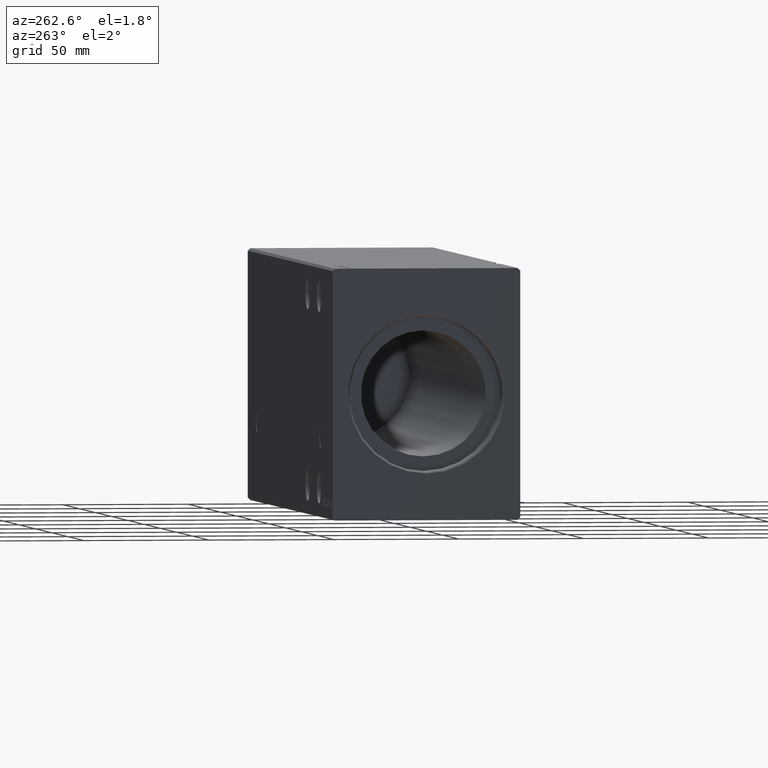
[diagram: clean part render]
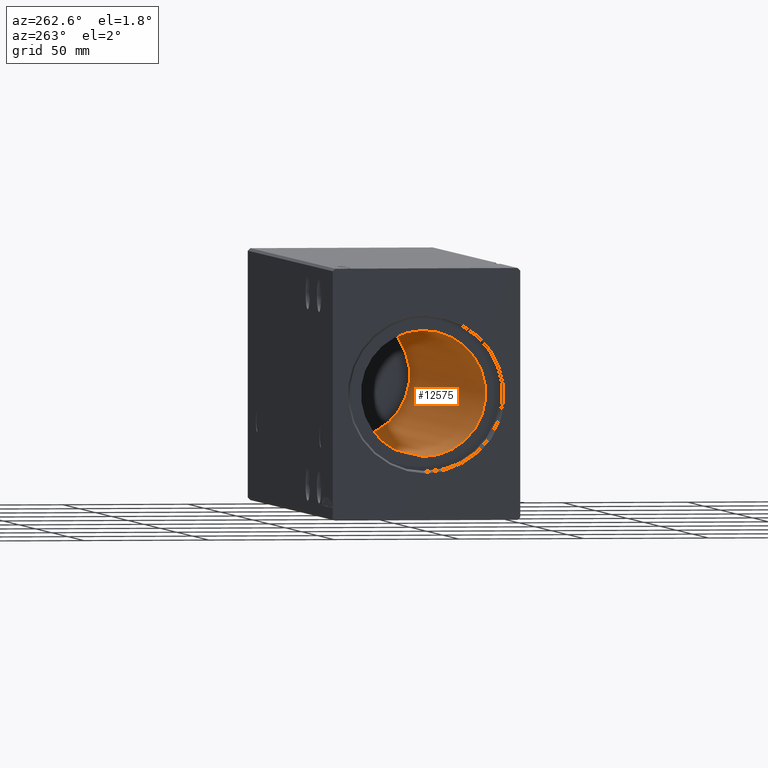
[diagram: same view with one face highlighted and labeled with its STEP entity id]
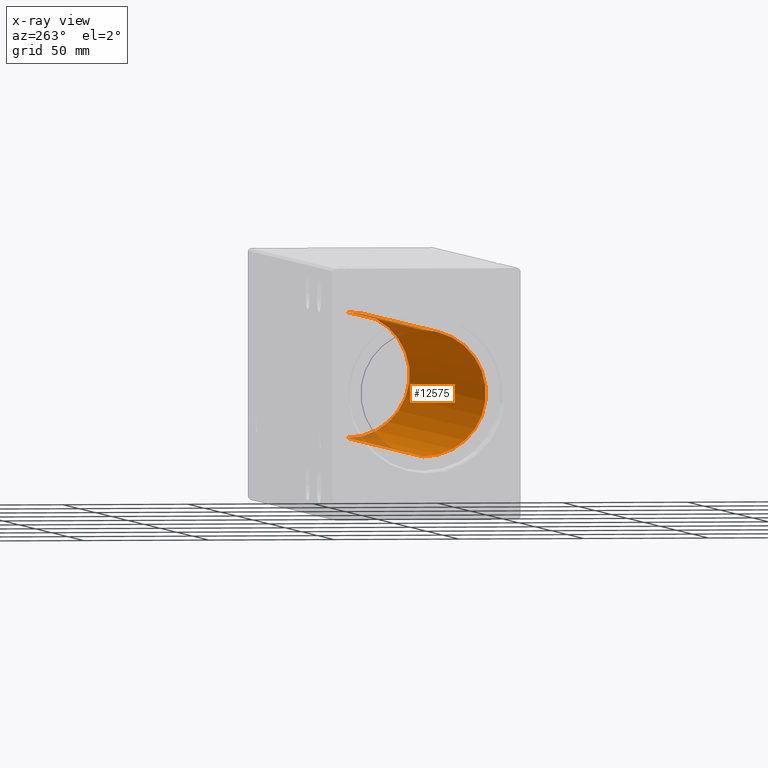
[diagram: x-ray of the same camera — body ghosted, the highlighted face saturated]
A machine part, auxiliary view. The second image highlights one B-rep face of the part: STEP entity #12575.
The next image is the same camera in x-ray: the body ghosted, the highlighted face saturated — about 6% of this face is hidden behind the body in this view.
In plain terms, the highlighted cylindrical surface (partial cylindrical patch) has radius 25 mm, axis along (-1, -0, -0).
Its self-contained STEP definition (entity closure, byte-faithful):
#224 = CIRCLE ( 'NONE', #30784, 25.00000000000000000 ) ;
#1625 = EDGE_CURVE ( 'NONE', #12699, #33002, #6590, .T. ) ;
#2351 = ORIENTED_EDGE ( 'NONE', *, *, #41812, .F. ) ;
#2382 = CARTESIAN_POINT ( 'NONE',  ( 244.1999999999999886, 0.000000000000000000, 25.00000000000000000 ) ) ;
#5378 = VECTOR ( 'NONE', #14941, 1000.000000000000000 ) ;
#6128 = AXIS2_PLACEMENT_3D ( 'NONE', #29808, #13653, #26629 ) ;
#6204 = ORIENTED_EDGE ( 'NONE', *, *, #32782, .T. ) ;
#6590 = LINE ( 'NONE', #19560, #25714 ) ;
#11547 = LINE ( 'NONE', #2382, #5378 ) ;
#12575 = ADVANCED_FACE ( 'NONE', ( #37233 ), #20458, .F. ) ;
#12607 = AXIS2_PLACEMENT_3D ( 'NONE', #13567, #39509, #23548 ) ;
#12699 = VERTEX_POINT ( 'NONE', #31911 ) ;
#13567 = CARTESIAN_POINT ( 'NONE',  ( 244.1999999999999886, 0.000000000000000000, 0.000000000000000000 ) ) ;
#13653 = DIRECTION ( 'NONE',  ( -1.000000000000000000, -0.000000000000000000, -0.000000000000000000 ) ) ;
#14941 = DIRECTION ( 'NONE',  ( -1.000000000000000000, -0.000000000000000000, -0.000000000000000000 ) ) ;
#16288 = DIRECTION ( 'NONE',  ( 0.000000000000000000, 0.000000000000000000, 1.000000000000000000 ) ) ;
#19062 = DIRECTION ( 'NONE',  ( -1.000000000000000000, 0.000000000000000000, 0.000000000000000000 ) ) ;
#19560 = CARTESIAN_POINT ( 'NONE',  ( 244.1999999999999886, 3.061616997868382254E-15, -25.00000000000000000 ) ) ;
#20458 = CYLINDRICAL_SURFACE ( 'NONE', #6128, 25.00000000000000000 ) ;
#20658 = ORIENTED_EDGE ( 'NONE', *, *, #21005, .F. ) ;
#21005 = EDGE_CURVE ( 'NONE', #12699, #23745, #34346, .T. ) ;
#23548 = DIRECTION ( 'NONE',  ( 0.000000000000000000, 0.000000000000000000, 1.000000000000000000 ) ) ;
#23745 = VERTEX_POINT ( 'NONE', #35222 ) ;
#25443 = CARTESIAN_POINT ( 'NONE',  ( 10.00000000000000888, 0.000000000000000000, 0.000000000000000000 ) ) ;
#25714 = VECTOR ( 'NONE', #28737, 1000.000000000000000 ) ;
#26629 = DIRECTION ( 'NONE',  ( 0.000000000000000000, 0.000000000000000000, 1.000000000000000000 ) ) ;
#28716 = VERTEX_POINT ( 'NONE', #30838 ) ;
#28737 = DIRECTION ( 'NONE',  ( -1.000000000000000000, -0.000000000000000000, -0.000000000000000000 ) ) ;
#29808 = CARTESIAN_POINT ( 'NONE',  ( 244.1999999999999886, 0.000000000000000000, 0.000000000000000000 ) ) ;
#30694 = EDGE_LOOP ( 'NONE', ( #20658, #37588, #6204, #2351 ) ) ;
#30784 = AXIS2_PLACEMENT_3D ( 'NONE', #25443, #19062, #16288 ) ;
#30838 = CARTESIAN_POINT ( 'NONE',  ( 10.00000000000000888, 0.000000000000000000, 25.00000000000000000 ) ) ;
#31911 = CARTESIAN_POINT ( 'NONE',  ( 244.1999999999999886, 3.061616997868382254E-15, -25.00000000000000000 ) ) ;
#32782 = EDGE_CURVE ( 'NONE', #33002, #28716, #224, .T. ) ;
#33002 = VERTEX_POINT ( 'NONE', #37083 ) ;
#34346 = CIRCLE ( 'NONE', #12607, 25.00000000000000000 ) ;
#35222 = CARTESIAN_POINT ( 'NONE',  ( 244.1999999999999886, 0.000000000000000000, 25.00000000000000000 ) ) ;
#37083 = CARTESIAN_POINT ( 'NONE',  ( 10.00000000000000888, 3.061616997868382254E-15, -25.00000000000000000 ) ) ;
#37233 = FACE_OUTER_BOUND ( 'NONE', #30694, .T. ) ;
#37588 = ORIENTED_EDGE ( 'NONE', *, *, #1625, .T. ) ;
#39509 = DIRECTION ( 'NONE',  ( -1.000000000000000000, 0.000000000000000000, 0.000000000000000000 ) ) ;
#41812 = EDGE_CURVE ( 'NONE', #23745, #28716, #11547, .T. ) ;